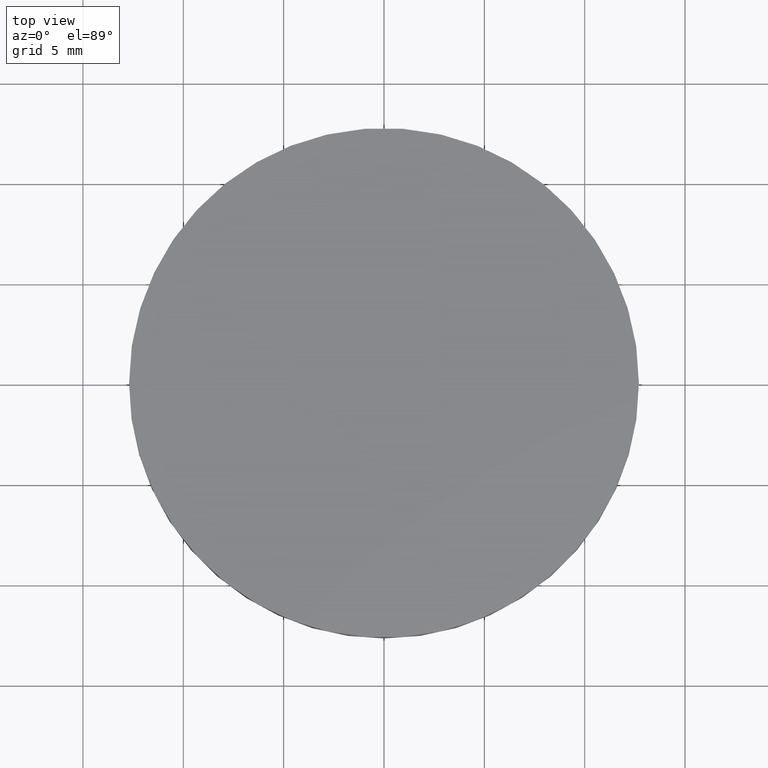
[diagram: clean part render]
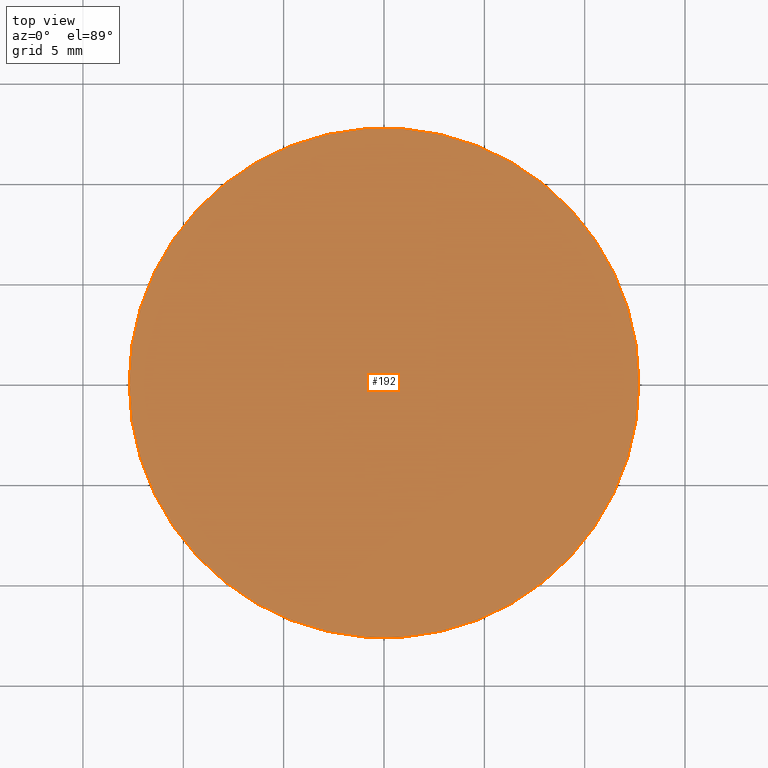
[diagram: same view with one face highlighted and labeled with its STEP entity id]
A machine part, top view. The second image highlights one B-rep face of the part: STEP entity #192.
In plain terms, the highlighted planar face has unit normal (0, 0, 1).
Its self-contained STEP definition (entity closure, byte-faithful):
#2 = CARTESIAN_POINT ( 'NONE',  ( 0.000000000000000000, 26.11199999999999832, 6.160000000000000142 ) ) ;
#5 = FACE_OUTER_BOUND ( 'NONE', #270, .T. ) ;
#8 = DIRECTION ( 'NONE',  ( -6.993530863780509846E-17, -4.890947394265059749E-33, -1.000000000000000000 ) ) ;
#49 = CARTESIAN_POINT ( 'NONE',  ( 1.028282480094215200E-15, -8.881784197001250351E-16, 6.159999999999999254 ) ) ;
#51 = CARTESIAN_POINT ( 'NONE',  ( -12.69999999999999751, 6.671230152170134961E-16, 6.160000000000000142 ) ) ;
#59 = ORIENTED_EDGE ( 'NONE', *, *, #152, .F. ) ;
#79 = VERTEX_POINT ( 'NONE', #51 ) ;
#152 = EDGE_CURVE ( 'NONE', #272, #79, #419, .T. ) ;
#182 = DIRECTION ( 'NONE',  ( 0.000000000000000000, 0.000000000000000000, 1.000000000000000000 ) ) ;
#192 = ADVANCED_FACE ( 'NONE', ( #5 ), #517, .T. ) ;
#195 = AXIS2_PLACEMENT_3D ( 'NONE', #347, #8, #303 ) ;
#267 = DIRECTION ( 'NONE',  ( -6.993530863780509846E-17, -4.890947394265059749E-33, -1.000000000000000000 ) ) ;
#270 = EDGE_LOOP ( 'NONE', ( #59, #433 ) ) ;
#272 = VERTEX_POINT ( 'NONE', #309 ) ;
#277 = AXIS2_PLACEMENT_3D ( 'NONE', #2, #182, #306 ) ;
#303 = DIRECTION ( 'NONE',  ( 1.000000000000000000, 0.000000000000000000, -6.829619984160658046E-17 ) ) ;
#306 = DIRECTION ( 'NONE',  ( 1.000000000000000000, 0.000000000000000000, -0.000000000000000000 ) ) ;
#309 = CARTESIAN_POINT ( 'NONE',  ( 12.70000000000000107, -8.881784197001250351E-16, 6.159999999999998366 ) ) ;
#347 = CARTESIAN_POINT ( 'NONE',  ( 1.028282480094215200E-15, -8.881784197001250351E-16, 6.159999999999999254 ) ) ;
#351 = AXIS2_PLACEMENT_3D ( 'NONE', #49, #267, #509 ) ;
#419 = CIRCLE ( 'NONE', #195, 12.69999999999999929 ) ;
#433 = ORIENTED_EDGE ( 'NONE', *, *, #516, .F. ) ;
#464 = CIRCLE ( 'NONE', #351, 12.69999999999999929 ) ;
#509 = DIRECTION ( 'NONE',  ( 1.000000000000000000, 0.000000000000000000, -6.829619984160658046E-17 ) ) ;
#516 = EDGE_CURVE ( 'NONE', #79, #272, #464, .T. ) ;
#517 = PLANE ( 'NONE',  #277 ) ;